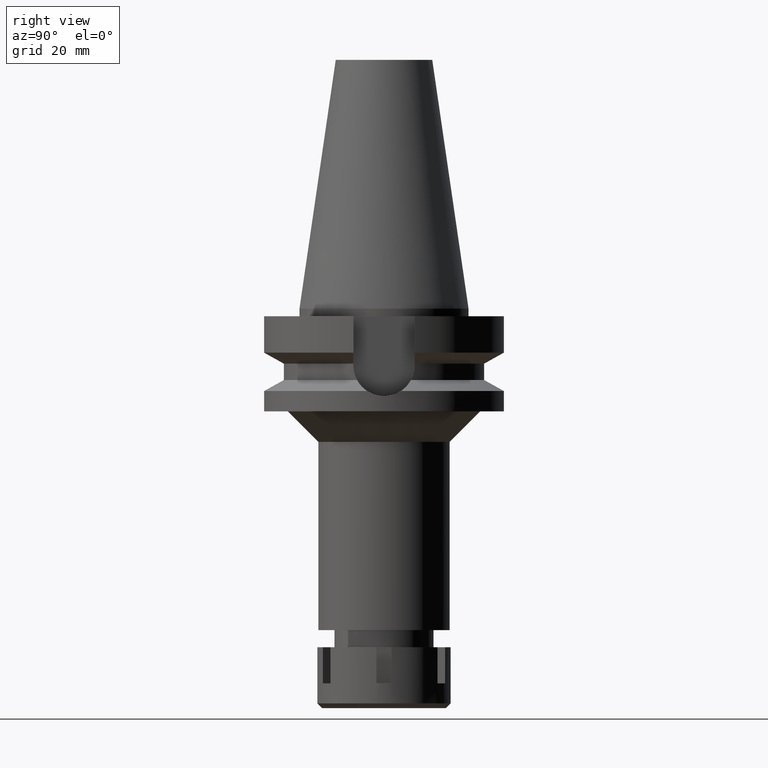
[diagram: clean part render]
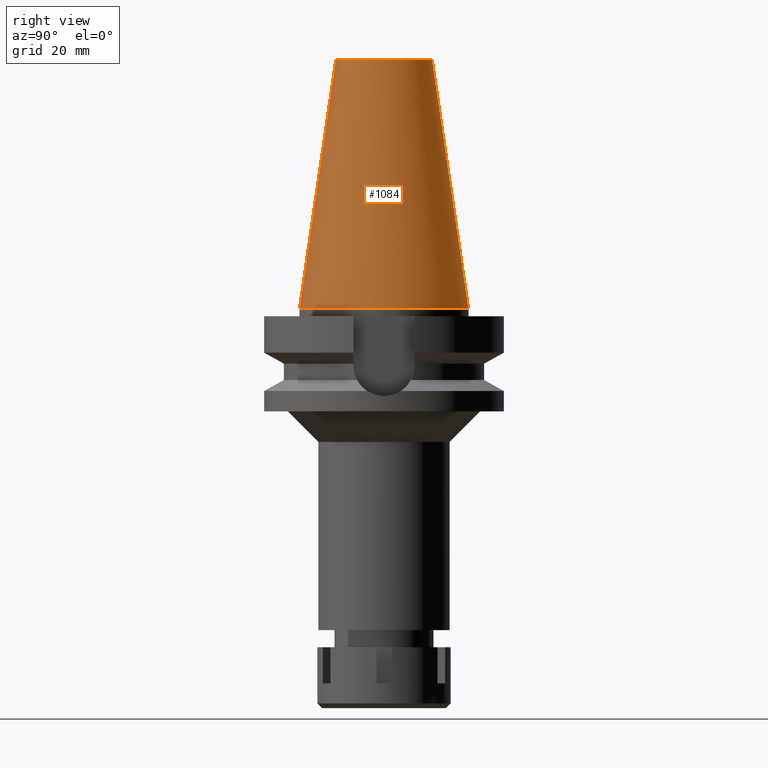
[diagram: same view with one face highlighted and labeled with its STEP entity id]
A machine part, right view. The second image highlights one B-rep face of the part: STEP entity #1084.
In plain terms, the highlighted conical surface has half-angle 8.297 deg.
Its self-contained STEP definition (entity closure, byte-faithful):
#142 = DIRECTION ( 'NONE',  ( 0.0000000000000000000, 0.0000000000000000000, -1.000000000000000000 ) ) ;
#150 = EDGE_CURVE ( 'NONE', #2842, #985, #2008, .T. ) ;
#174 = DIRECTION ( 'NONE',  ( 0.0000000000000000000, 1.000000000000000000, 0.0000000000000000000 ) ) ;
#192 = CARTESIAN_POINT ( 'NONE',  ( 0.0000000000000000000, -12.68766899429999917, 65.40000000000000568 ) ) ;
#206 = CARTESIAN_POINT ( 'NONE',  ( 0.0000000000000000000, 1.625106302469000024E-14, 2.842170943039999687E-14 ) ) ;
#326 = DIRECTION ( 'NONE',  ( 0.0000000000000000000, -1.000000000000000000, 0.0000000000000000000 ) ) ;
#333 = VECTOR ( 'NONE', #391, 1000.000000000000114 ) ;
#350 = AXIS2_PLACEMENT_3D ( 'NONE', #206, #1647, #174 ) ;
#370 = ORIENTED_EDGE ( 'NONE', *, *, #2316, .F. ) ;
#376 = ORIENTED_EDGE ( 'NONE', *, *, #3446, .T. ) ;
#391 = DIRECTION ( 'NONE',  ( 0.0000000000000000000, 0.1443043893539925626, -0.9895333461855498891 ) ) ;
#648 = CIRCLE ( 'NONE', #350, 22.22500000000000142 ) ;
#861 = FACE_OUTER_BOUND ( 'NONE', #1852, .T. ) ;
#940 = AXIS2_PLACEMENT_3D ( 'NONE', #3565, #142, #3549 ) ;
#985 = VERTEX_POINT ( 'NONE', #3150 ) ;
#1084 = ADVANCED_FACE ( 'NONE', ( #861 ), #1569, .T. ) ;
#1171 = ORIENTED_EDGE ( 'NONE', *, *, #150, .F. ) ;
#1310 = ORIENTED_EDGE ( 'NONE', *, *, #3340, .T. ) ;
#1569 = CONICAL_SURFACE ( 'NONE', #1627, 17.45633449714999941, 0.1448099680379422438 ) ;
#1606 = VERTEX_POINT ( 'NONE', #3541 ) ;
#1627 = AXIS2_PLACEMENT_3D ( 'NONE', #1770, #2867, #326 ) ;
#1647 = DIRECTION ( 'NONE',  ( 0.0000000000000000000, 0.0000000000000000000, -1.000000000000000000 ) ) ;
#1770 = CARTESIAN_POINT ( 'NONE',  ( 0.0000000000000000000, 1.625106302469000024E-14, 32.70000000000000284 ) ) ;
#1840 = LINE ( 'NONE', #192, #3600 ) ;
#1852 = EDGE_LOOP ( 'NONE', ( #376, #1310, #370, #1171 ) ) ;
#2008 = LINE ( 'NONE', #3392, #333 ) ;
#2316 = EDGE_CURVE ( 'NONE', #985, #3138, #648, .T. ) ;
#2433 = DIRECTION ( 'NONE',  ( 0.0000000000000000000, -0.1443043893539925626, -0.9895333461855498891 ) ) ;
#2541 = CIRCLE ( 'NONE', #940, 12.68766899429999917 ) ;
#2653 = CARTESIAN_POINT ( 'NONE',  ( 0.0000000000000000000, -22.22500000000000142, 2.842170943039999687E-14 ) ) ;
#2842 = VERTEX_POINT ( 'NONE', #3652 ) ;
#2867 = DIRECTION ( 'NONE',  ( 0.0000000000000000000, 0.0000000000000000000, -1.000000000000000000 ) ) ;
#3138 = VERTEX_POINT ( 'NONE', #2653 ) ;
#3150 = CARTESIAN_POINT ( 'NONE',  ( 0.0000000000000000000, 22.22500000000000142, 9.947598300640998705E-14 ) ) ;
#3340 = EDGE_CURVE ( 'NONE', #1606, #3138, #1840, .T. ) ;
#3392 = CARTESIAN_POINT ( 'NONE',  ( 0.0000000000000000000, 12.68766899429999917, 65.40000000000000568 ) ) ;
#3446 = EDGE_CURVE ( 'NONE', #2842, #1606, #2541, .T. ) ;
#3541 = CARTESIAN_POINT ( 'NONE',  ( 0.0000000000000000000, -12.68766899429999917, 65.40000000000000568 ) ) ;
#3549 = DIRECTION ( 'NONE',  ( 0.0000000000000000000, 1.000000000000000000, 0.0000000000000000000 ) ) ;
#3565 = CARTESIAN_POINT ( 'NONE',  ( 0.0000000000000000000, 1.625106302469000024E-14, 65.40000000000000568 ) ) ;
#3600 = VECTOR ( 'NONE', #2433, 1000.000000000000114 ) ;
#3652 = CARTESIAN_POINT ( 'NONE',  ( 0.0000000000000000000, 12.68766899429999917, 65.40000000000000568 ) ) ;